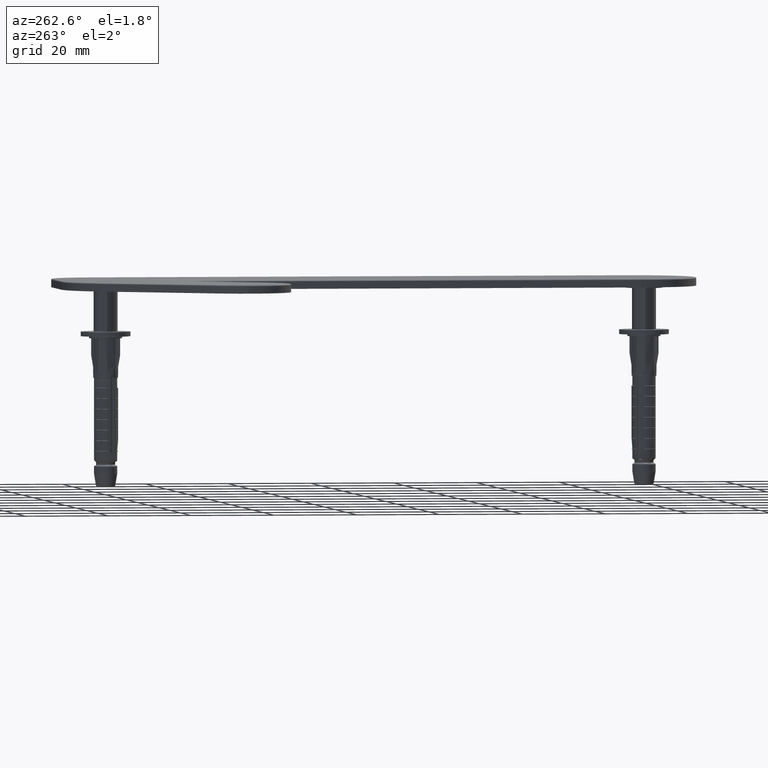
[diagram: clean part render]
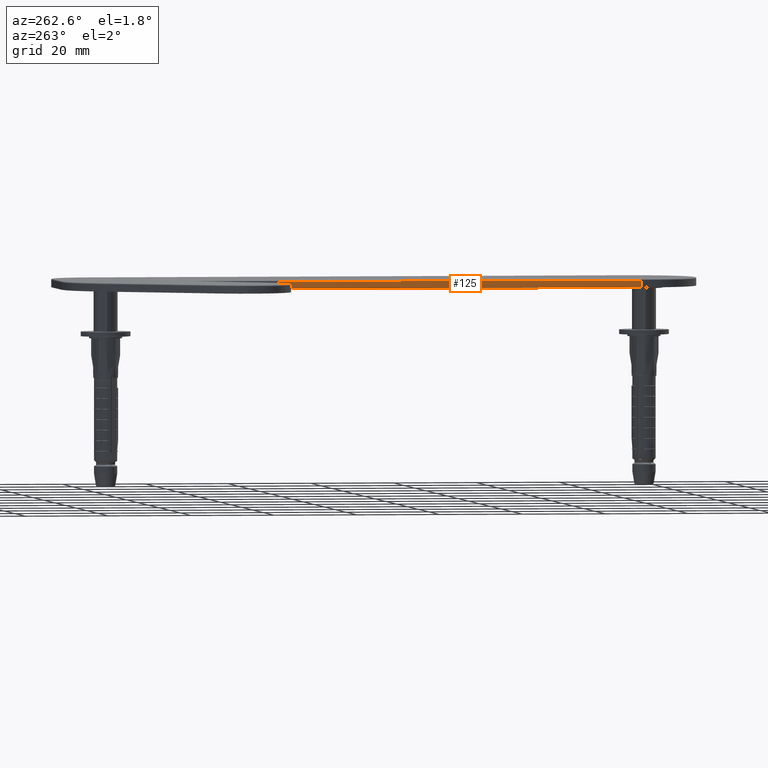
[diagram: same view with one face highlighted and labeled with its STEP entity id]
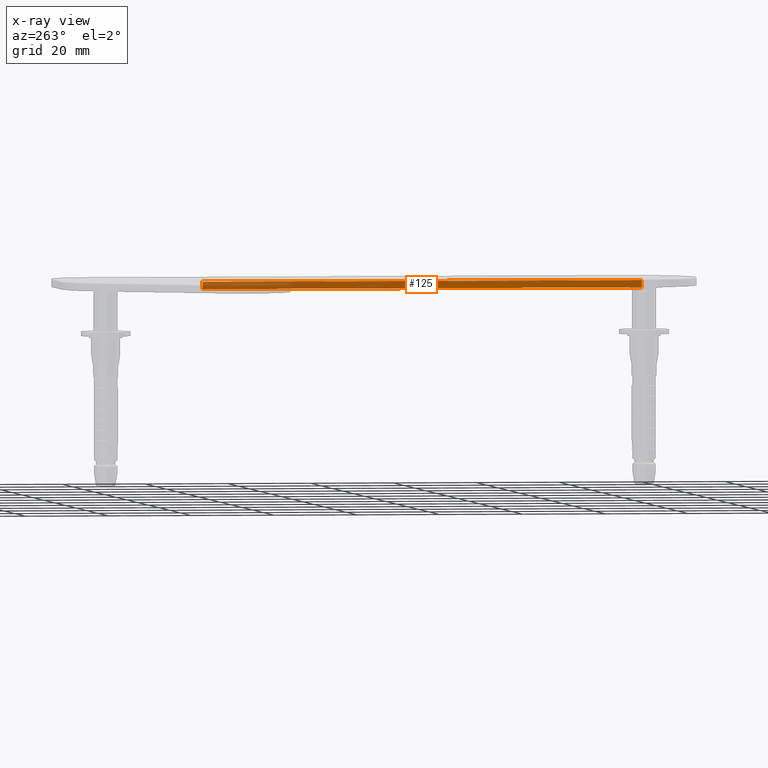
[diagram: x-ray of the same camera — body ghosted, the highlighted face saturated]
A machine part, auxiliary view. The second image highlights one B-rep face of the part: STEP entity #125.
The next image is the same camera in x-ray: the body ghosted, the highlighted face saturated — about 16% of this face is hidden behind the body in this view.
In plain terms, the highlighted planar face has unit normal (1, 0, 0).
Its self-contained STEP definition (entity closure, byte-faithful):
#125 = ADVANCED_FACE ( 'NONE', ( #30163 ), #26772, .F. ) ;
#1850 = EDGE_CURVE ( 'NONE', #34096, #35371, #12085, .T. ) ;
#3061 = CARTESIAN_POINT ( 'NONE',  ( -15.00000000000006040, 121.0929111837240271, 2.000000000000000000 ) ) ;
#3638 = ORIENTED_EDGE ( 'NONE', *, *, #35978, .F. ) ;
#4633 = VECTOR ( 'NONE', #19418, 1000.000000000000000 ) ;
#4752 = CARTESIAN_POINT ( 'NONE',  ( -15.00000000000004619, 15.00000000000003197, 0.000000000000000000 ) ) ;
#6455 = EDGE_CURVE ( 'NONE', #35371, #32750, #26733, .T. ) ;
#6849 = DIRECTION ( 'NONE',  ( -0.000000000000000000, -0.000000000000000000, -1.000000000000000000 ) ) ;
#6994 = CARTESIAN_POINT ( 'NONE',  ( -15.00000000000004619, 15.00000000000003197, 2.000000000000000000 ) ) ;
#9577 = ORIENTED_EDGE ( 'NONE', *, *, #33286, .T. ) ;
#10878 = VERTEX_POINT ( 'NONE', #32685 ) ;
#11442 = ORIENTED_EDGE ( 'NONE', *, *, #6455, .T. ) ;
#11981 = DIRECTION ( 'NONE',  ( -1.308078706953560275E-16, 1.000000000000000000, 0.000000000000000000 ) ) ;
#12085 = LINE ( 'NONE', #15860, #29212 ) ;
#12642 = DIRECTION ( 'NONE',  ( -0.000000000000000000, -0.000000000000000000, -1.000000000000000000 ) ) ;
#13657 = DIRECTION ( 'NONE',  ( 1.308078706953560275E-16, -1.000000000000000000, 0.000000000000000000 ) ) ;
#14619 = VECTOR ( 'NONE', #12642, 1000.000000000000000 ) ;
#15860 = CARTESIAN_POINT ( 'NONE',  ( -15.00000000000005862, 121.0929111837240271, 2.000000000000000000 ) ) ;
#16644 = LINE ( 'NONE', #31746, #4633 ) ;
#18809 = VECTOR ( 'NONE', #13657, 1000.000000000000000 ) ;
#19111 = CARTESIAN_POINT ( 'NONE',  ( -15.00000000000006040, 121.0929111837240271, 0.000000000000000000 ) ) ;
#19418 = DIRECTION ( 'NONE',  ( -1.308078706953560275E-16, 1.000000000000000000, -0.000000000000000000 ) ) ;
#21960 = ORIENTED_EDGE ( 'NONE', *, *, #1850, .T. ) ;
#22660 = EDGE_LOOP ( 'NONE', ( #3638, #9577, #21960, #11442 ) ) ;
#23760 = DIRECTION ( 'NONE',  ( 1.000000000000000000, 1.308078706953560275E-16, -0.000000000000000000 ) ) ;
#24423 = CARTESIAN_POINT ( 'NONE',  ( -15.00000000000005862, 121.0929111837240271, 1.750000000000000000 ) ) ;
#26733 = LINE ( 'NONE', #19111, #18809 ) ;
#26772 = PLANE ( 'NONE',  #32878 ) ;
#27180 = LINE ( 'NONE', #6994, #14619 ) ;
#29212 = VECTOR ( 'NONE', #6849, 1000.000000000000000 ) ;
#30163 = FACE_OUTER_BOUND ( 'NONE', #22660, .T. ) ;
#31746 = CARTESIAN_POINT ( 'NONE',  ( -15.00000000000006040, 121.0929111837240271, 1.750000000000000000 ) ) ;
#32292 = CARTESIAN_POINT ( 'NONE',  ( -15.00000000000005862, 121.0929111837240271, 0.000000000000000000 ) ) ;
#32685 = CARTESIAN_POINT ( 'NONE',  ( -15.00000000000004619, 15.00000000000003197, 1.750000000000000000 ) ) ;
#32750 = VERTEX_POINT ( 'NONE', #4752 ) ;
#32878 = AXIS2_PLACEMENT_3D ( 'NONE', #3061, #23760, #11981 ) ;
#33286 = EDGE_CURVE ( 'NONE', #10878, #34096, #16644, .T. ) ;
#34096 = VERTEX_POINT ( 'NONE', #24423 ) ;
#35371 = VERTEX_POINT ( 'NONE', #32292 ) ;
#35978 = EDGE_CURVE ( 'NONE', #10878, #32750, #27180, .T. ) ;